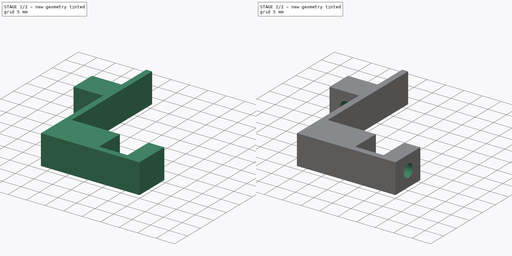
[diagram: build sequence overview — one tinted view per stage of 2, left to right]
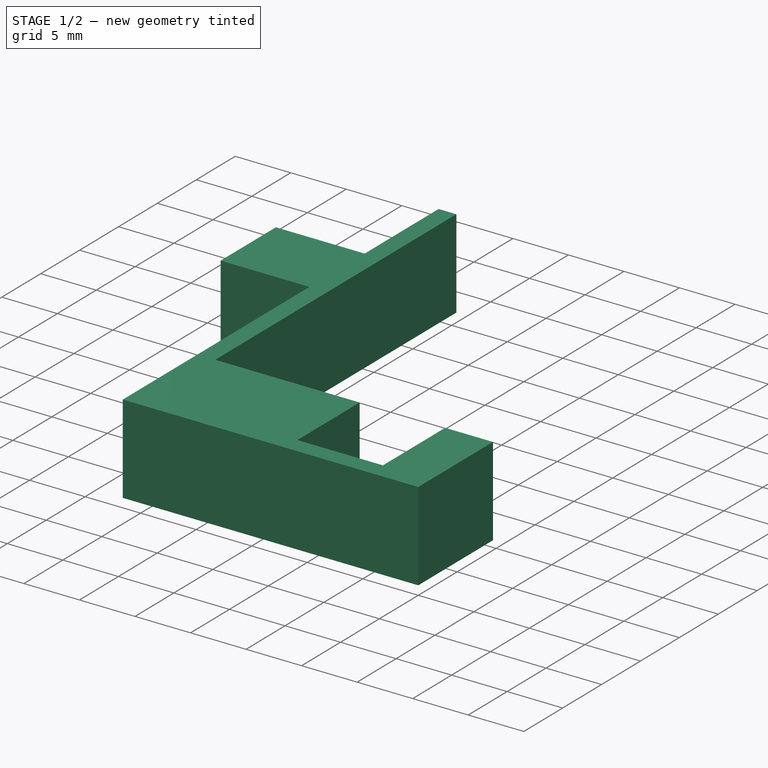
[diagram: stage 1 of 2 — iso view after this stage's code; geometry added in this stage tinted green]
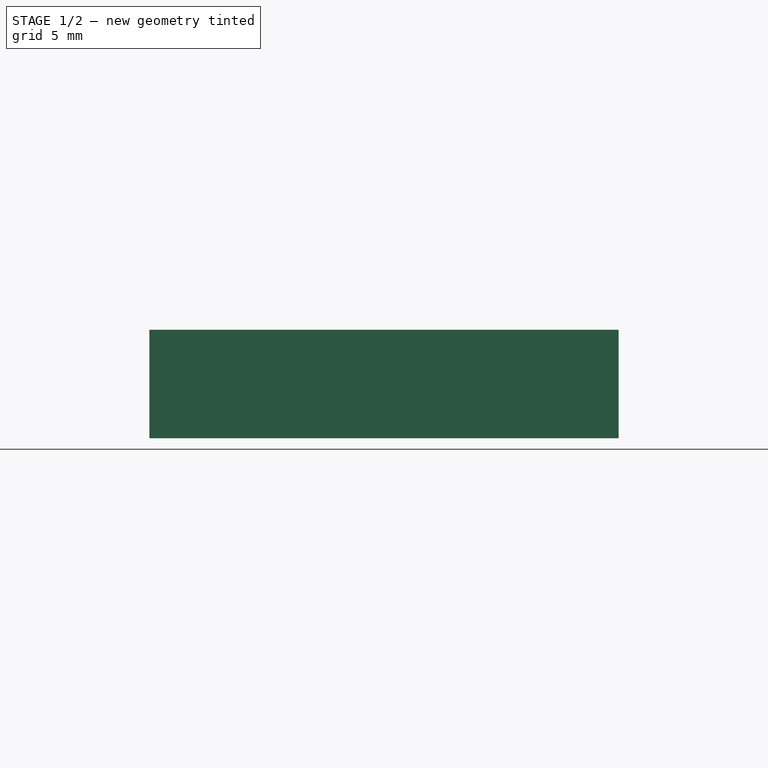
[diagram: stage 1 of 2 — front view after this stage's code; geometry added in this stage tinted green]
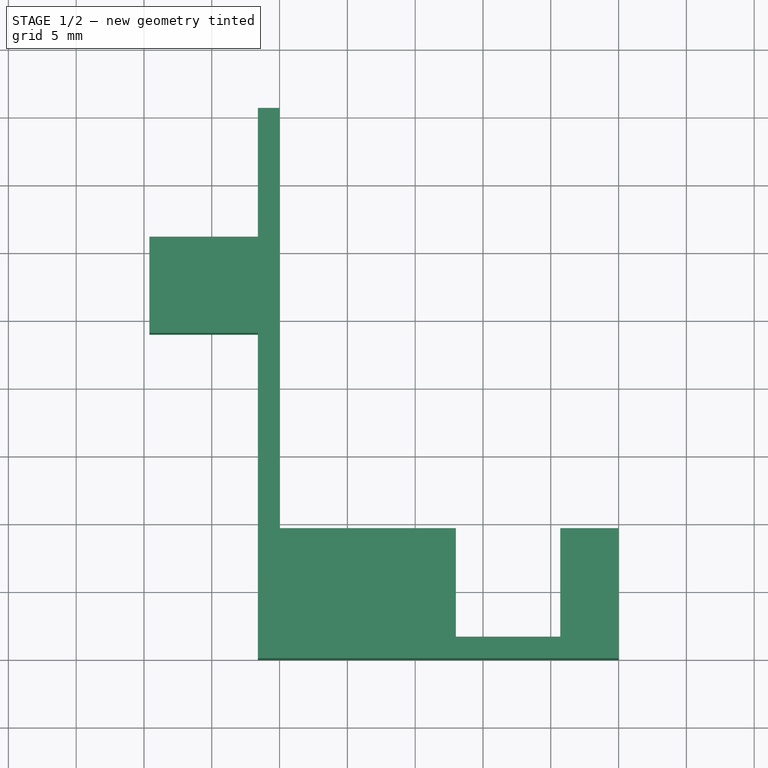
[diagram: stage 1 of 2 — top view after this stage's code; geometry added in this stage tinted green]
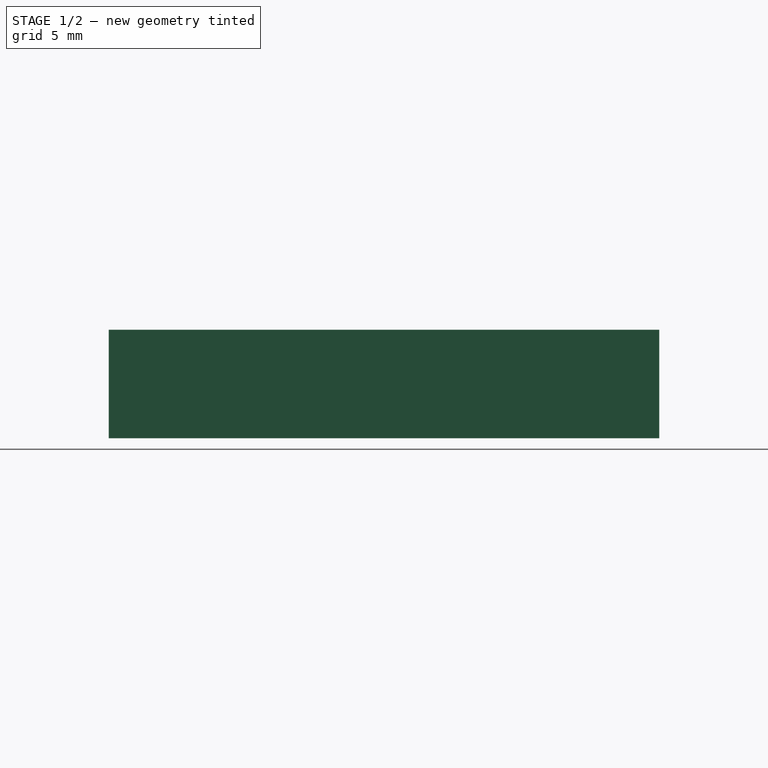
[diagram: stage 1 of 2 — right view after this stage's code; geometry added in this stage tinted green]
FCSTD DOCUMENT  (FreeCAD 0.14R3702 (Git))
Label: Support-ventil-tete-gauche
License: CC-BY 3.0
LicenseURL: http://creativecommons.org/licenses/by/3.0/
objects: Sketcher::SketchObject×4, PartDesign::Pocket×3, PartDesign::Pad×1
note: 12 computed .brp shape members not serialized (recipe doc carries the construction recipe); baked Part::Feature solids carry a one-line shape summary decoded from their .brp

FEATURE [Sketcher::SketchObject] Sketch
  sketch-geometry (6):
    g0: LineSegment StartX=0 StartY=0 StartZ=0 EndX=-34.6 EndY=0 EndZ=0
    g1: LineSegment StartX=-34.6 StartY=0 StartZ=0 EndX=-34.6 EndY=40.6 EndZ=0
    g2: LineSegment StartX=-34.6 StartY=40.6 StartZ=0 EndX=-25 EndY=40.6 EndZ=0
    g3: LineSegment StartX=-25 StartY=40.6 StartZ=0 EndX=-25 EndY=9.6 EndZ=0
    g4: LineSegment StartX=-25 StartY=9.6 StartZ=0 EndX=0 EndY=9.6 EndZ=0
    g5: LineSegment StartX=0 StartY=0 StartZ=0 EndX=0 EndY=9.6 EndZ=0
  constraints (17):
    c: Horizontal(g0)
    c: Coincident(g1,g0)
    c: Vertical(g1)
    c: Coincident(g2,g1)
    c: Horizontal(g2)
    c: Coincident(g3,g2)
    c: Vertical(g3)
    c: Coincident(g4,g3)
    c: Horizontal(g4)
    c: Coincident(g5,g0)
    c: Coincident(g5,g4)
    c: Vertical(g5)
    c: DistanceY(g4,g0) = -9.6
    c: DistanceX(g3,g4) = 25
    c: DistanceY(g2,g3) = -31
    c: Coincident(g0,g-1)
    c: DistanceX(g1,g2) = 9.6
FEATURE [PartDesign::Pad] Pad
  Length = 8
  Length2 = 100
  Sketch = -> Sketch
  Type = 0
FEATURE [Sketcher::SketchObject] Sketch001
  ExternalGeometry = -> [Pad]
  Placement = pos=(0,0,8) rot=(0,0,1;0rad)
  Support = -> Pad [Face8]
  sketch-geometry (12):
    g0: LineSegment StartX=-34.6 StartY=40.6 StartZ=0 EndX=-26.6 EndY=40.6 EndZ=0
    g1: LineSegment StartX=-26.6 StartY=40.6 StartZ=0 EndX=-26.6 EndY=31.1 EndZ=0
    g2: LineSegment StartX=-26.6 StartY=31.1 StartZ=0 EndX=-34.6 EndY=31.1 EndZ=0
    g3: LineSegment StartX=-34.6 StartY=31.1 StartZ=0 EndX=-34.6 EndY=40.6 EndZ=0
    g4: LineSegment StartX=-34.6 StartY=0 StartZ=0 EndX=-26.6 EndY=0 EndZ=0
    g5: LineSegment StartX=-26.6 StartY=0 StartZ=0 EndX=-26.6 EndY=24 EndZ=0
    g6: LineSegment StartX=-26.6 StartY=24 StartZ=0 EndX=-34.6 EndY=24 EndZ=0
    g7: LineSegment StartX=-34.6 StartY=24 StartZ=0 EndX=-34.6 EndY=0 EndZ=0
    g8: LineSegment StartX=-12 StartY=9.6 StartZ=0 EndX=-4.3 EndY=9.6 EndZ=0
    g9: LineSegment StartX=-4.3 StartY=9.6 StartZ=0 EndX=-4.3 EndY=1.6 EndZ=0
    g10: LineSegment StartX=-4.3 StartY=1.6 StartZ=0 EndX=-12 EndY=1.6 EndZ=0
    g11: LineSegment StartX=-12 StartY=1.6 StartZ=0 EndX=-12 EndY=9.6 EndZ=0
  constraints (34):
    c: Coincident(g0,g1)
    c: Coincident(g1,g2)
    c: Coincident(g2,g3)
    c: Coincident(g3,g0)
    c: Horizontal(g0)
    c: Horizontal(g2)
    c: Vertical(g1)
    c: Vertical(g3)
    c: Coincident(g0,g-3)
    c: Coincident(g4,g5)
    c: Coincident(g5,g6)
    c: Coincident(g6,g7)
    c: Coincident(g7,g4)
    c: Horizontal(g4)
    c: Horizontal(g6)
    c: Vertical(g5)
    c: Vertical(g7)
    c: Coincident(g4,g-4)
    c: Coincident(g8,g9)
    c: Coincident(g9,g10)
    c: Coincident(g10,g11)
    c: Coincident(g11,g8)
    c: Horizontal(g8)
    c: Horizontal(g10)
    c: Vertical(g9)
    c: Vertical(g11)
    c: PointOnObject(g8,g-5)
    c: DistanceY(g4,g6) = 24
    c: DistanceY(g6,g2) = 7.1
    c: DistanceX(g0,g-3) = 1.6
    c: Equal(g2,g6)
    c: DistanceY(g8,g9) = -8
    c: DistanceX(g-5,g8) = 13
    c: DistanceX(g8,g8) = 7.7
FEATURE [PartDesign::Pocket] Pocket
  Length = 9
  Sketch = -> Sketch001
  Type = 0
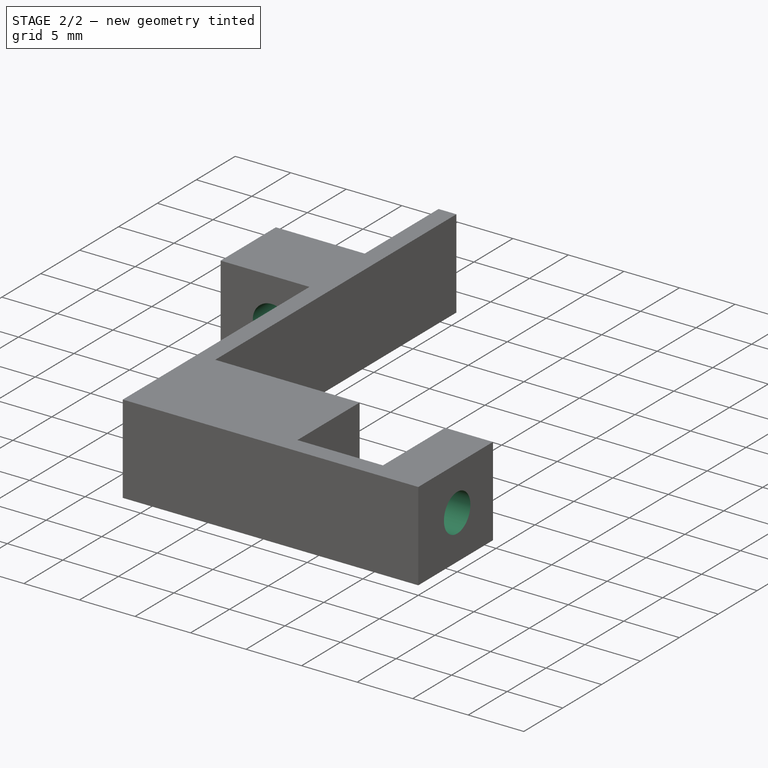
[diagram: stage 2 of 2 — iso view after this stage's code; geometry added in this stage tinted green]
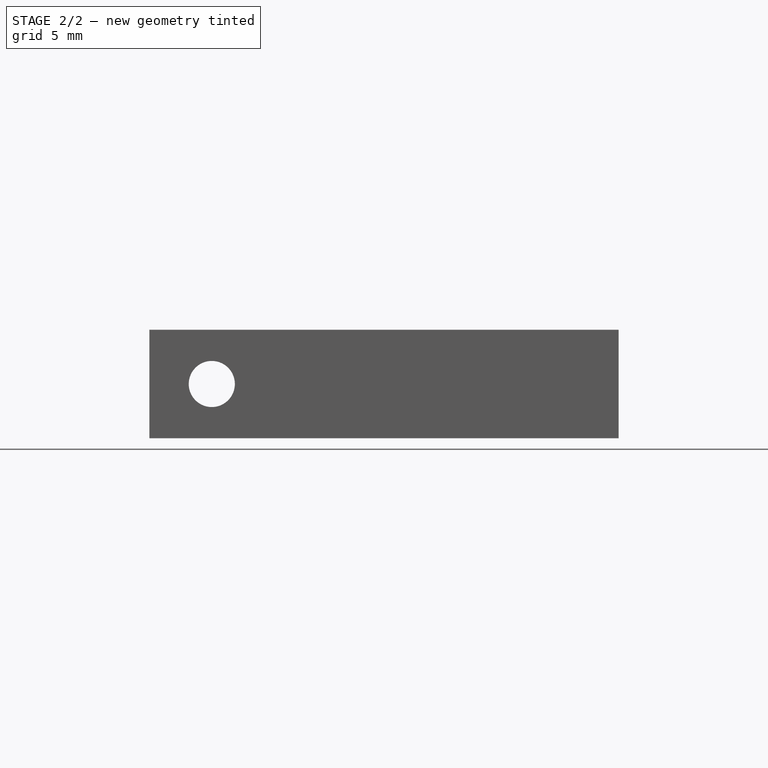
[diagram: stage 2 of 2 — front view after this stage's code; geometry added in this stage tinted green]
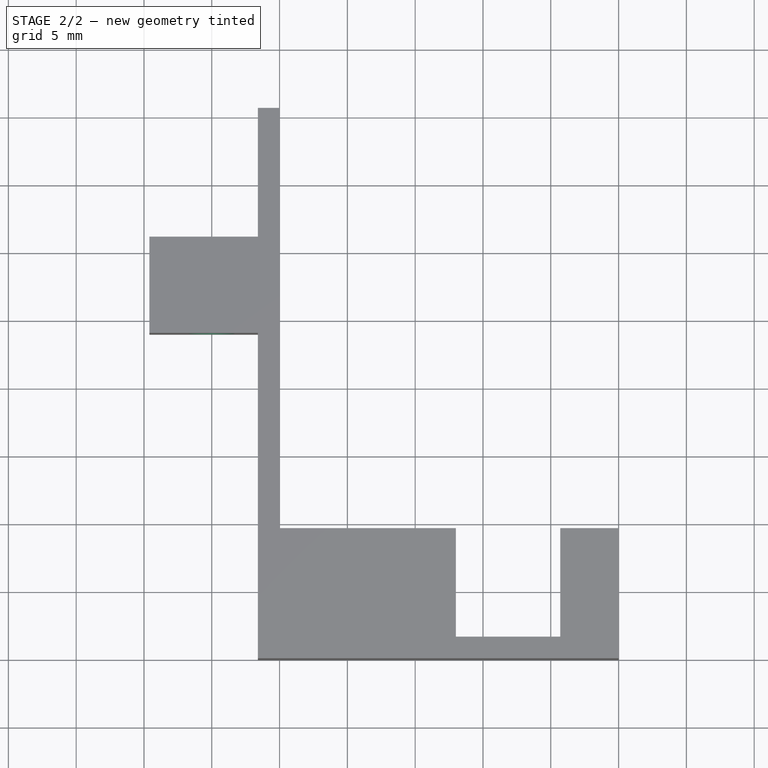
[diagram: stage 2 of 2 — top view after this stage's code; geometry added in this stage tinted green]
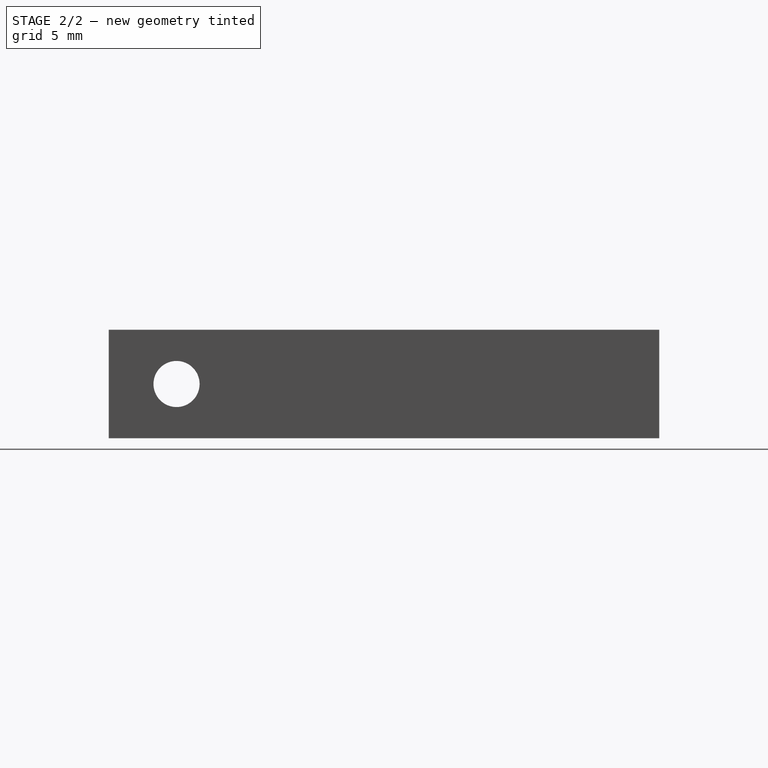
[diagram: stage 2 of 2 — right view after this stage's code; geometry added in this stage tinted green]
FEATURE [Sketcher::SketchObject] Sketch002
  Placement = pos=(0,24,0) rot=(1,0,0;1.5708rad)
  Support = -> Pocket [Face6]
  sketch-geometry (1):
    g0: Circle CenterX=-30 CenterY=4 CenterZ=0 NormalX=0 NormalY=0 NormalZ=1 Radius=1.7
  constraints (1):
    c: Radius(g0) = 1.7
FEATURE [PartDesign::Pocket] Pocket001
  Length = 9
  Sketch = -> Sketch002
  Type = 0
FEATURE [Sketcher::SketchObject] Sketch003
  Placement = pos=(0,0,0) rot=(0.57735,0.57735,0.57735;2.0944rad)
  Support = -> Pocket001 [Face5]
  sketch-geometry (1):
    g0: Circle CenterX=5 CenterY=4 CenterZ=0 NormalX=0 NormalY=0 NormalZ=1 Radius=1.7
  constraints (1):
    c: Radius(g0) = 1.7
FEATURE [PartDesign::Pocket] Pocket002
  Length = 35
  Sketch = -> Sketch003
  Type = 0
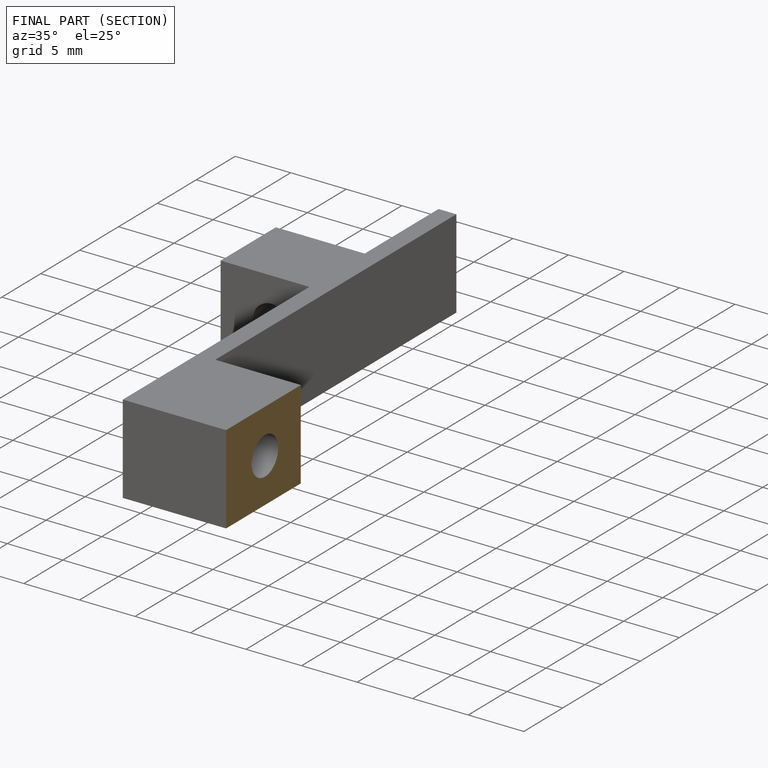
[diagram: finished part — half-section view (interior)]
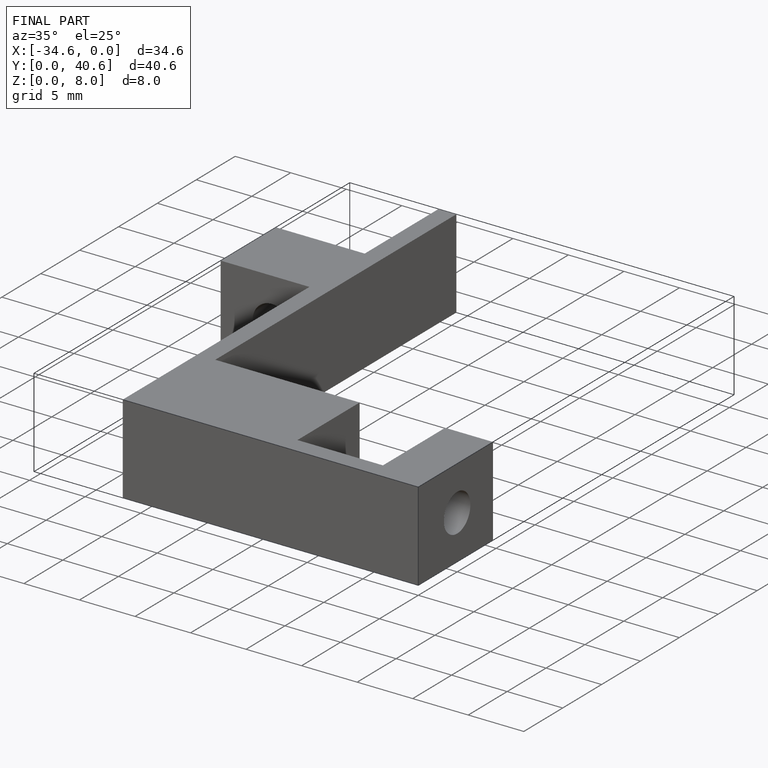
[diagram: finished part — iso view with bounding-box wireframe]
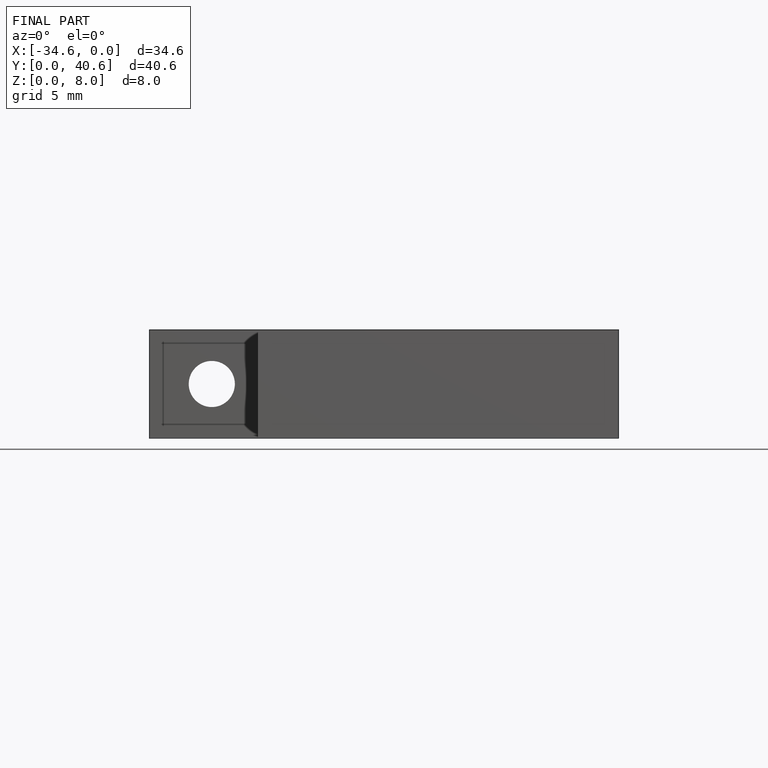
[diagram: finished part — front view with bounding-box wireframe]
